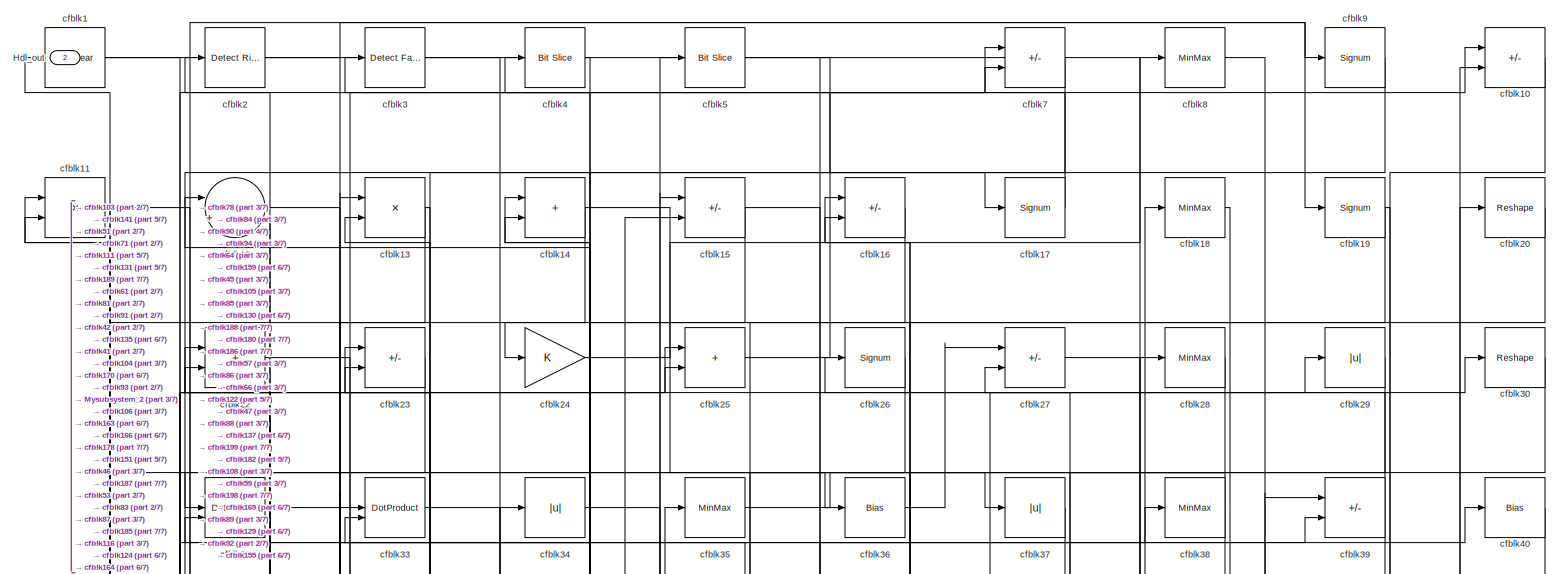
[diagram: root canvas - part 1/7, full width, top band]
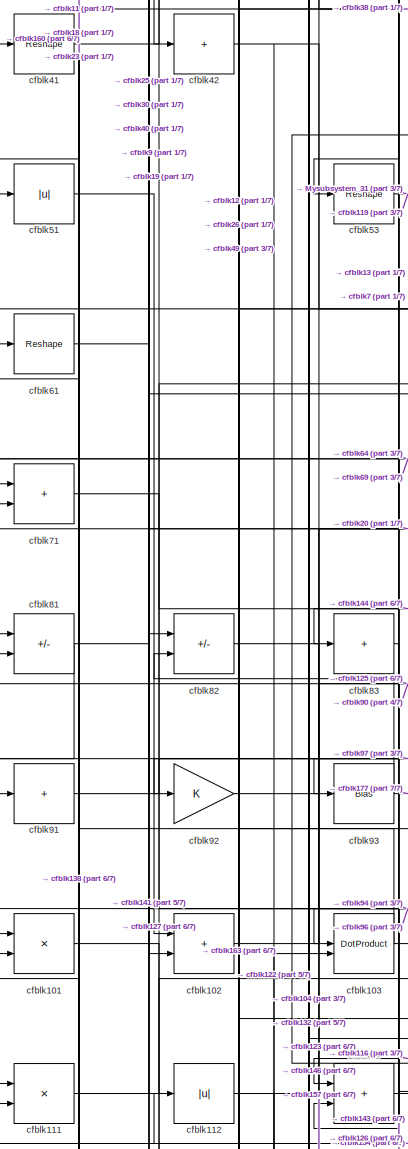
[diagram: root canvas - part 2/7, middle left region]
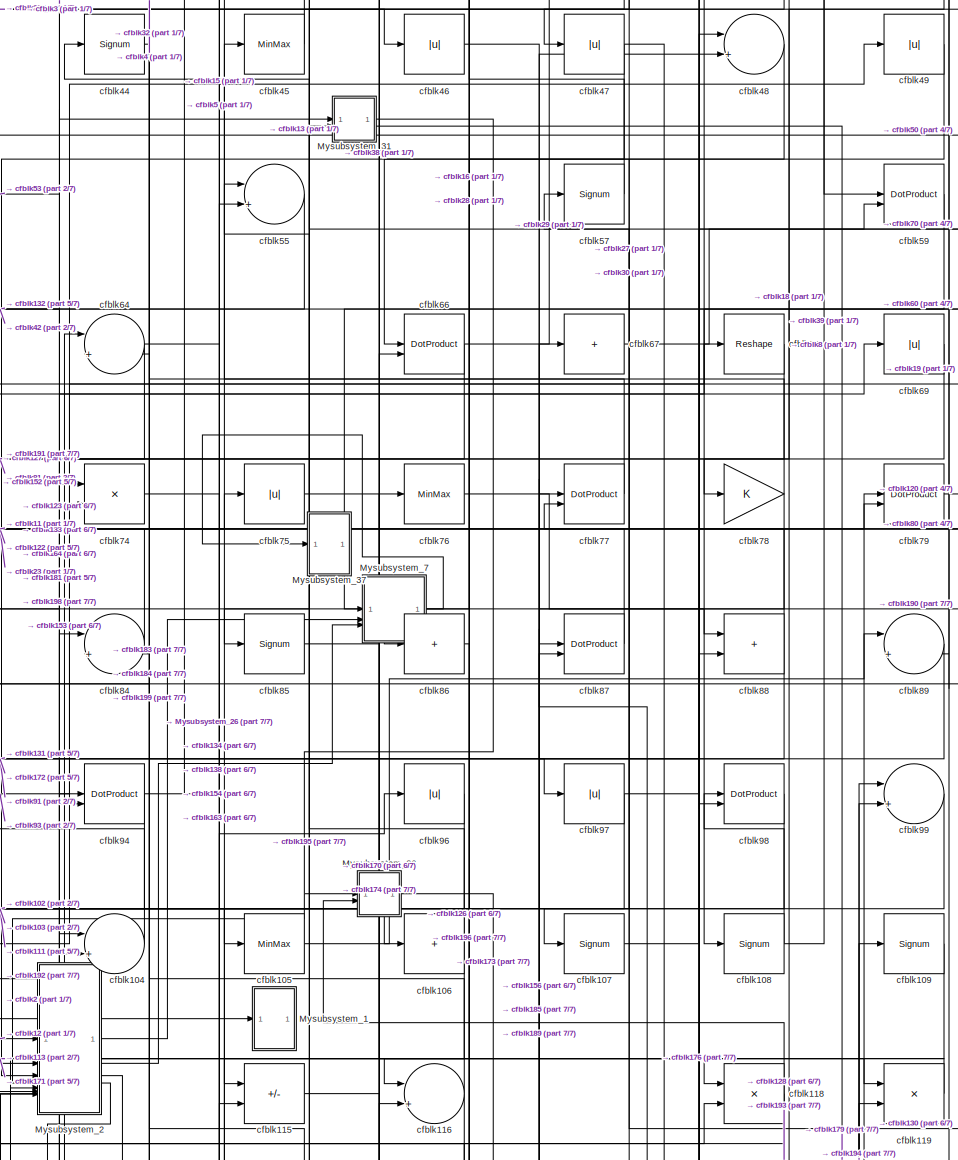
[diagram: root canvas - part 3/7, central region]
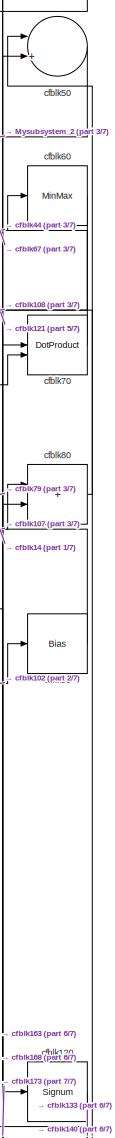
[diagram: root canvas - part 4/7, middle right region]
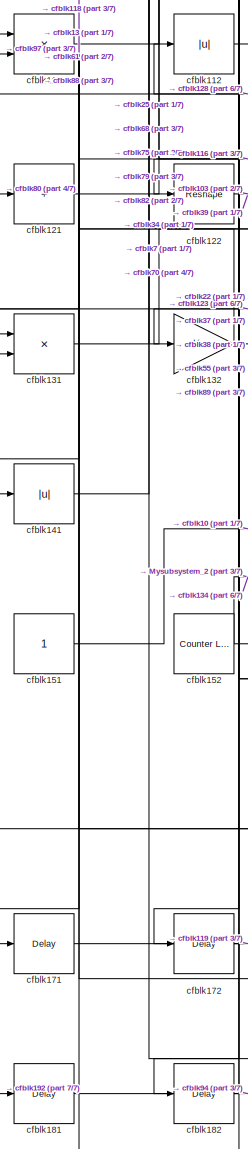
[diagram: root canvas - part 5/7, bottom left region]
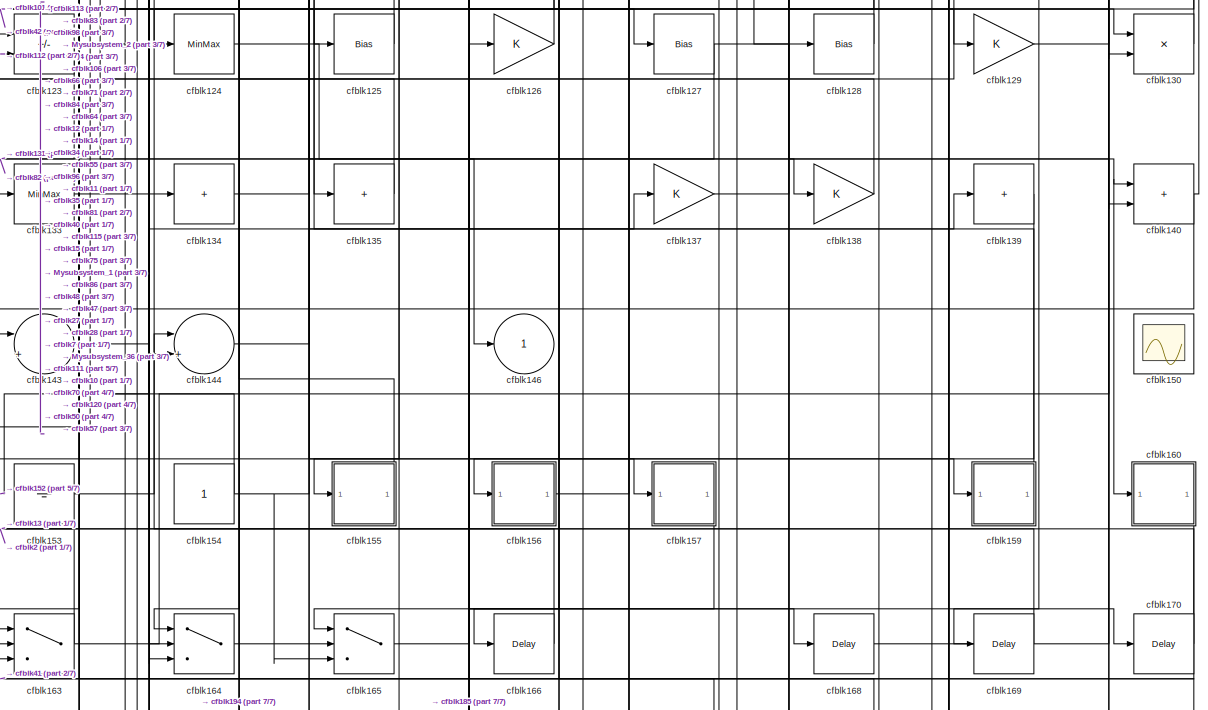
[diagram: root canvas - part 6/7, full width, bottom band]
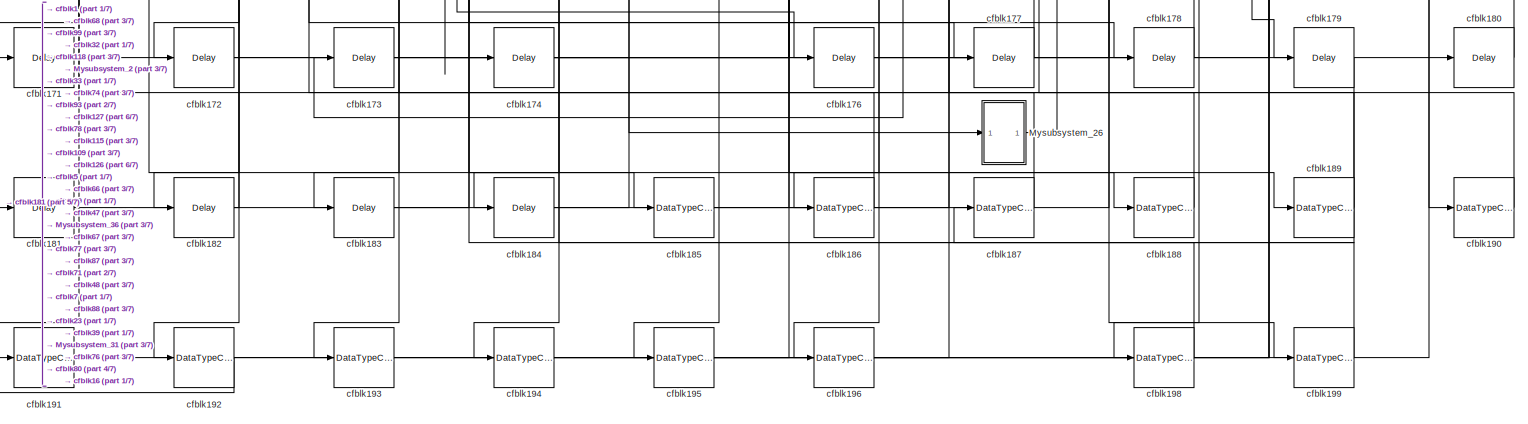
[diagram: root canvas - part 7/7, full width, bottom band]
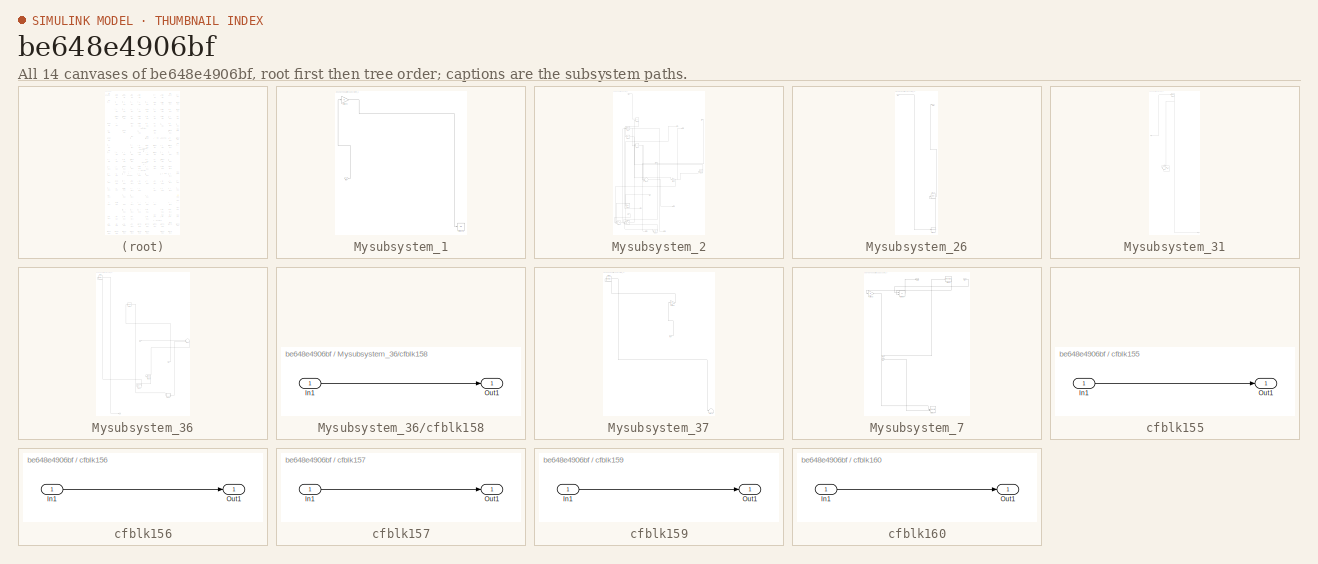
[diagram: thumbnail index - all 14 canvases of the model, root first then tree order]
MODEL slx_be648e4906bf
KIND model
CONFIG AbsTol = auto
CONFIG EnableMultiTasking = off
CONFIG FixedStep = auto
CONFIG MaxStep = auto
CONFIG MinStep = auto
CONFIG RelTol = 1e-3
CONFIG SampleTimeConstraint = Unconstrained
CONFIG SolverName = VariableStepAuto
CONFIG StartTime = 0.0
CONFIG StopTime = 10.0
BLOCK [Outport] Hdl_out
  OutDataTypeStr = uint8
  Port = 2
BLOCK [SubSystem] Mysubsystem_1
  RTWFcnName = Mysubsystem_1
  RTWFcnNameOpts = User specified
  RTWFileNameOpts = Use function name
  RTWSystemCode = Reusable function
  TreatAsAtomicUnit = on
BLOCK [Inport] Mysubsystem_1/In1
BLOCK [Display] Mysubsystem_1/cfblk148
  Decimation = 1
BLOCK [Gain] Mysubsystem_1/cfblk72
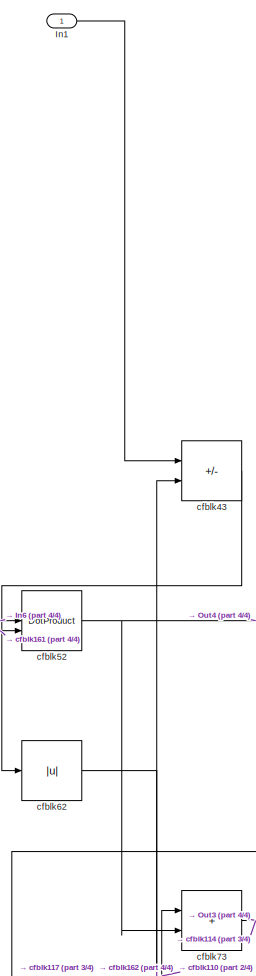
[diagram: Mysubsystem_2 - part 1/4, top left region]
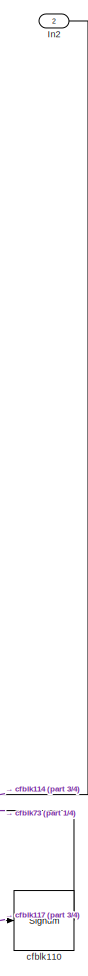
[diagram: Mysubsystem_2 - part 2/4, middle right region]
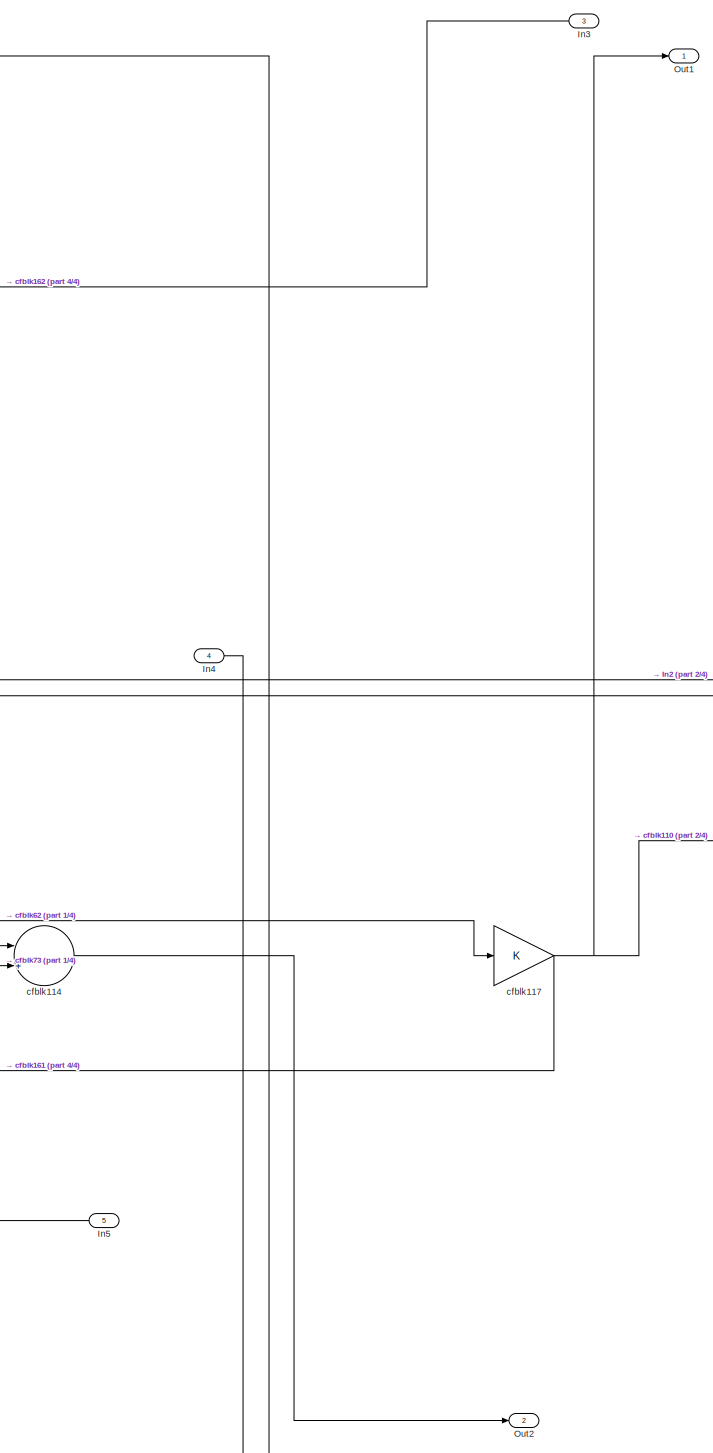
[diagram: Mysubsystem_2 - part 3/4, central region]
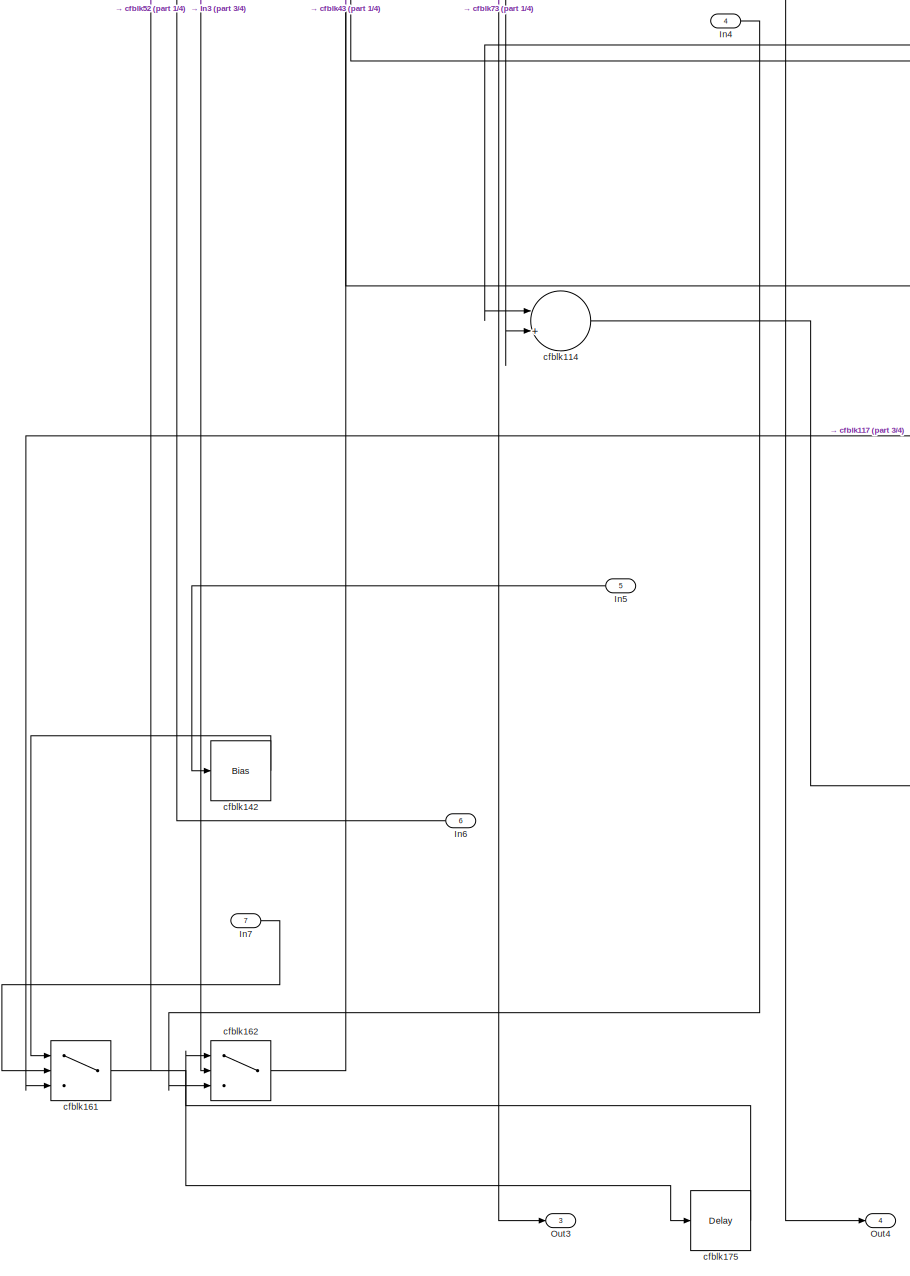
[diagram: Mysubsystem_2 - part 4/4, bottom left region]
BLOCK [SubSystem] Mysubsystem_2
  RTWFcnName = Mysubsystem_2
  RTWFcnNameOpts = User specified
  RTWFileNameOpts = Use function name
  RTWSystemCode = Reusable function
  TreatAsAtomicUnit = on
BLOCK [Inport] Mysubsystem_2/In1
BLOCK [Inport] Mysubsystem_2/In2
  Port = 2
BLOCK [Inport] Mysubsystem_2/In3
  Port = 3
BLOCK [Inport] Mysubsystem_2/In4
  Port = 4
BLOCK [Inport] Mysubsystem_2/In5
  Port = 5
BLOCK [Inport] Mysubsystem_2/In6
  Port = 6
BLOCK [Inport] Mysubsystem_2/In7
  Port = 7
BLOCK [Outport] Mysubsystem_2/Out1
BLOCK [Outport] Mysubsystem_2/Out2
  Port = 2
BLOCK [Outport] Mysubsystem_2/Out3
  Port = 3
BLOCK [Outport] Mysubsystem_2/Out4
  Port = 4
BLOCK [Signum] Mysubsystem_2/cfblk110
BLOCK [Sum] Mysubsystem_2/cfblk114
  Inputs = |++
BLOCK [Gain] Mysubsystem_2/cfblk117
BLOCK [Bias] Mysubsystem_2/cfblk142
  Bias = 0.0
  SaturateOnIntegerOverflow = off
BLOCK [Switch] Mysubsystem_2/cfblk161
  InputSameDT = off
  SaturateOnIntegerOverflow = off
BLOCK [Switch] Mysubsystem_2/cfblk162
  InputSameDT = off
  SaturateOnIntegerOverflow = off
BLOCK [Delay] Mysubsystem_2/cfblk175
  InputPortMap = u0
  SampleTime = 1
BLOCK [Sum] Mysubsystem_2/cfblk43
  IconShape = rectangular
  Inputs = +-
BLOCK [DotProduct] Mysubsystem_2/cfblk52
  OutDataTypeStr = Inherit: Inherit via internal rule
BLOCK [Abs] Mysubsystem_2/cfblk62
  SaturateOnIntegerOverflow = off
BLOCK [Sum] Mysubsystem_2/cfblk73
  IconShape = rectangular
BLOCK [SubSystem] Mysubsystem_26
  RTWFcnName = Mysubsystem_26
  RTWFcnNameOpts = User specified
  RTWFileNameOpts = Use function name
  RTWSystemCode = Reusable function
  TreatAsAtomicUnit = on
BLOCK [Inport] Mysubsystem_26/In1
BLOCK [Outport] Mysubsystem_26/Out1
BLOCK [Delay] Mysubsystem_26/cfblk167
  InputPortMap = u0
  SampleTime = 1
BLOCK [DataTypeConversion] Mysubsystem_26/cfblk197
  OutDataTypeStr = uint8
  RndMeth = Floor
  SaturateOnIntegerOverflow = off
BLOCK [SubSystem] Mysubsystem_31
  RTWFcnName = Mysubsystem_31
  RTWFcnNameOpts = User specified
  RTWFileNameOpts = Use function name
  RTWSystemCode = Reusable function
  TreatAsAtomicUnit = on
BLOCK [Inport] Mysubsystem_31/In2
  Port = 2
BLOCK [Outport] Mysubsystem_31/Out1
BLOCK [Reference] Mysubsystem_31/cfblk6  REF=hdlsllib/Logic and Bit
Operations/Compare
To Constant
  SourceBlock = hdlsllib/Logic and Bit\nOperations/Compare\nTo Constant
  SourceType = Compare To Constant
BLOCK [Sum] Mysubsystem_31/cfblk95
  Inputs = |++
BLOCK [Inport] Mysubsystem_31/u
BLOCK [Outport] Mysubsystem_31/y
  Port = 2
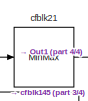
[diagram: Mysubsystem_36 - part 1/4, top left region]
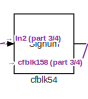
[diagram: Mysubsystem_36 - part 2/4, top center region]
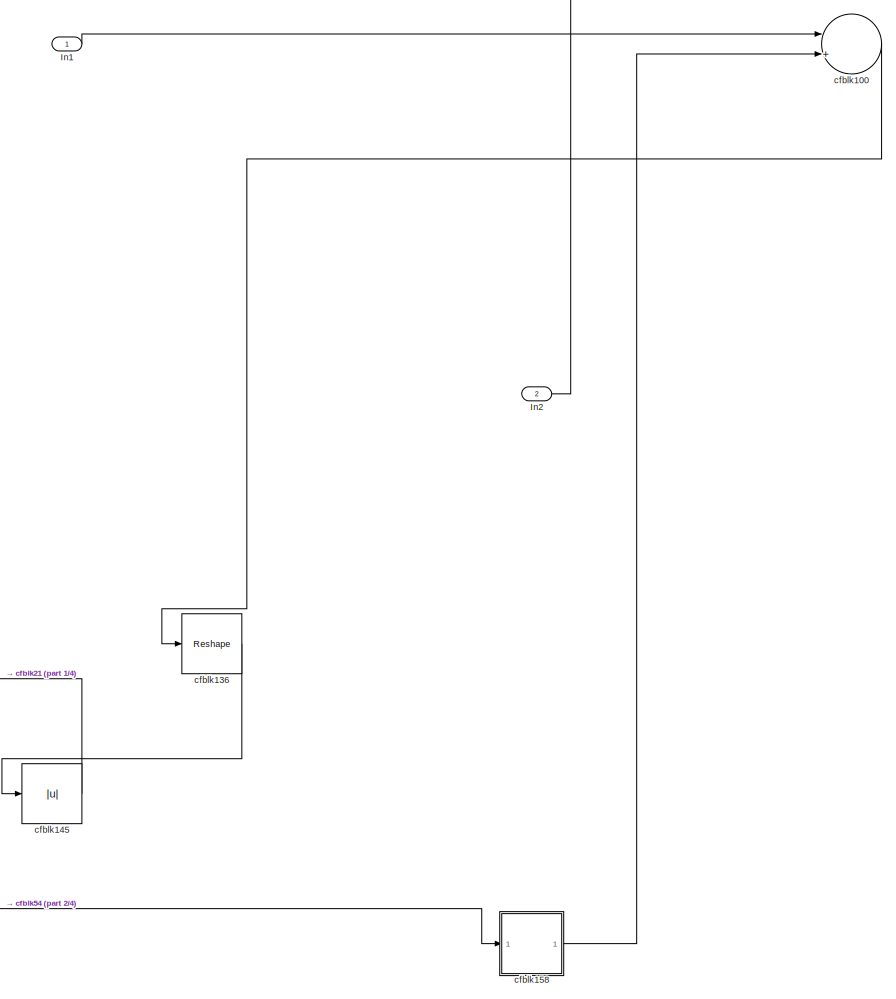
[diagram: Mysubsystem_36 - part 3/4, bottom right region]
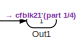
[diagram: Mysubsystem_36 - part 4/4, bottom left region]
BLOCK [SubSystem] Mysubsystem_36
  RTWFcnName = Mysubsystem_36
  RTWFcnNameOpts = User specified
  RTWFileNameOpts = Use function name
  RTWSystemCode = Reusable function
  TreatAsAtomicUnit = on
BLOCK [Inport] Mysubsystem_36/In1
BLOCK [Inport] Mysubsystem_36/In2
  Port = 2
BLOCK [Outport] Mysubsystem_36/Out1
BLOCK [Sum] Mysubsystem_36/cfblk100
  Inputs = |++
BLOCK [Reshape] Mysubsystem_36/cfblk136
BLOCK [Abs] Mysubsystem_36/cfblk145
  SaturateOnIntegerOverflow = off
BLOCK [SubSystem] Mysubsystem_36/cfblk158
  LibrarySourceBlock = hdlsllib/Ports &\nSubsystems/Subsystem
BLOCK [Inport] Mysubsystem_36/cfblk158/In1
BLOCK [Outport] Mysubsystem_36/cfblk158/Out1
BLOCK [MinMax] Mysubsystem_36/cfblk21
BLOCK [Signum] Mysubsystem_36/cfblk54
BLOCK [SubSystem] Mysubsystem_37
  RTWFcnName = Mysubsystem_37
  RTWFcnNameOpts = User specified
  RTWFileNameOpts = Use function name
  RTWSystemCode = Reusable function
  TreatAsAtomicUnit = on
BLOCK [Inport] Mysubsystem_37/In1
BLOCK [Terminator] Mysubsystem_37/cfblk149
BLOCK [MinMax] Mysubsystem_37/cfblk31
BLOCK [Gain] Mysubsystem_37/cfblk56
BLOCK [SubSystem] Mysubsystem_7
  RTWFcnName = Mysubsystem_7
  RTWFcnNameOpts = User specified
  RTWFileNameOpts = Use function name
  RTWSystemCode = Reusable function
  TreatAsAtomicUnit = on
BLOCK [Inport] Mysubsystem_7/In1
BLOCK [Inport] Mysubsystem_7/In2
  Port = 2
BLOCK [Inport] Mysubsystem_7/In3
  Port = 3
BLOCK [Outport] Mysubsystem_7/Out1
BLOCK [Record] Mysubsystem_7/cfblk147
  CompatibilityTag = XY
  FileSettingsInternal = {"entries":[{"content":{"excelSettings":{"content":{},"type":"Streamout.ExcelSettings"}},"type":"Streamout.FileSettingStorage","uuid":""}],"packageUris":["http:\/\/schema.mathworks.com\/mf0\/streamout_blocks\/R2020a"],"version":"1.0"}
  Layout = [1 1]
  SignalsInternal = {"entries":[{"content":{},"type":"RecordBlkView.InputSignals","uuid":""}],"packageUris":["http:\/\/schema.mathworks.com\/mf0\/streamout_blocks\/R2020a"],"version":"1.0"}
  VisualizationBindings = {"xyplotplugin":{"info":[{"series":[],"subplotID":1}]}}
  st = -1
BLOCK [Reshape] Mysubsystem_7/cfblk58
BLOCK [Gain] Mysubsystem_7/cfblk63
BLOCK [Sum] Mysubsystem_7/cfblk65
  IconShape = rectangular
  Inputs = +-
BLOCK [Reference] cfblk1  REF=simulink/Logic and Bit
Operations/Bit Clear
  LibrarySourceBlock = hdlsllib/Logic and Bit\nOperations/Bit Clear
  SourceBlock = simulink/Logic and Bit\nOperations/Bit Clear
  SourceType = Bit Clear
BLOCK [Sum] cfblk10
  IconShape = rectangular
  Inputs = +-
  OutDataTypeStr = uint8
BLOCK [Product] cfblk101
  Inputs = */
  OutDataTypeStr = uint8
  RndMeth = Zero
  SaturateOnIntegerOverflow = on
BLOCK [Sum] cfblk102
  IconShape = rectangular
  OutDataTypeStr = uint8
BLOCK [DotProduct] cfblk103
  OutDataTypeStr = uint8
BLOCK [Sum] cfblk104
  Inputs = |++
  OutDataTypeStr = uint8
BLOCK [MinMax] cfblk105
  OutDataTypeStr = uint8
BLOCK [Sum] cfblk106
  IconShape = rectangular
  Inputs = +
  OutDataTypeStr = uint8
BLOCK [Signum] cfblk107
BLOCK [Signum] cfblk108
BLOCK [Signum] cfblk109
BLOCK [Product] cfblk11
  Inputs = */
  OutDataTypeStr = uint8
  RndMeth = Zero
  SaturateOnIntegerOverflow = on
BLOCK [Product] cfblk111
  Inputs = */
  OutDataTypeStr = uint8
  RndMeth = Zero
  SaturateOnIntegerOverflow = on
BLOCK [Abs] cfblk112
  OutDataTypeStr = uint8
  SaturateOnIntegerOverflow = off
BLOCK [Sum] cfblk113
  IconShape = rectangular
  OutDataTypeStr = uint8
BLOCK [Sum] cfblk115
  IconShape = rectangular
  Inputs = +-
  OutDataTypeStr = uint8
BLOCK [Sum] cfblk116
  Inputs = |++
  OutDataTypeStr = uint8
BLOCK [Product] cfblk118
  Inputs = */
  OutDataTypeStr = uint8
  RndMeth = Zero
  SaturateOnIntegerOverflow = on
BLOCK [Product] cfblk119
  Inputs = */
  OutDataTypeStr = uint8
  RndMeth = Zero
  SaturateOnIntegerOverflow = on
BLOCK [Sum] cfblk12
  Inputs = |++
  OutDataTypeStr = uint8
BLOCK [Signum] cfblk120
BLOCK [Sum] cfblk121
  IconShape = rectangular
  Inputs = +
  OutDataTypeStr = uint8
BLOCK [Reshape] cfblk122
BLOCK [Sum] cfblk123
  IconShape = rectangular
  Inputs = +-
  OutDataTypeStr = uint8
BLOCK [MinMax] cfblk124
  OutDataTypeStr = uint8
BLOCK [Bias] cfblk125
  Bias = 0.0
  SaturateOnIntegerOverflow = off
BLOCK [Gain] cfblk126
  OutDataTypeStr = uint8
BLOCK [Bias] cfblk127
  Bias = 0.0
  SaturateOnIntegerOverflow = off
BLOCK [Bias] cfblk128
  Bias = 0.0
  SaturateOnIntegerOverflow = off
BLOCK [Gain] cfblk129
  OutDataTypeStr = uint8
BLOCK [Product] cfblk13
  Inputs = */
  OutDataTypeStr = uint8
  RndMeth = Zero
  SaturateOnIntegerOverflow = on
BLOCK [Product] cfblk130
  Inputs = */
  OutDataTypeStr = uint8
  RndMeth = Zero
  SaturateOnIntegerOverflow = on
BLOCK [Product] cfblk131
  Inputs = */
  OutDataTypeStr = uint8
  RndMeth = Zero
  SaturateOnIntegerOverflow = on
BLOCK [Gain] cfblk132
  OutDataTypeStr = uint8
BLOCK [MinMax] cfblk133
  OutDataTypeStr = uint8
BLOCK [Sum] cfblk134
  IconShape = rectangular
  Inputs = +
  OutDataTypeStr = uint8
BLOCK [Sum] cfblk135
  IconShape = rectangular
  Inputs = +
  OutDataTypeStr = uint8
BLOCK [Gain] cfblk137
  OutDataTypeStr = uint8
BLOCK [Gain] cfblk138
  OutDataTypeStr = uint8
BLOCK [Sum] cfblk139
  IconShape = rectangular
  Inputs = +
  OutDataTypeStr = uint8
BLOCK [Sum] cfblk14
  IconShape = rectangular
  OutDataTypeStr = uint8
BLOCK [Sum] cfblk140
  IconShape = rectangular
  OutDataTypeStr = uint8
BLOCK [Abs] cfblk141
  OutDataTypeStr = uint8
  SaturateOnIntegerOverflow = off
BLOCK [Sum] cfblk143
  Inputs = |++
  OutDataTypeStr = uint8
BLOCK [Sum] cfblk144
  Inputs = |++
  OutDataTypeStr = uint8
BLOCK [Outport] cfblk146
  OutDataTypeStr = uint8
  VectorParamsAs1DForOutWhenUnconnected = off
BLOCK [Sum] cfblk15
  IconShape = rectangular
  Inputs = +-
  OutDataTypeStr = uint8
BLOCK [Scope] cfblk150
  Floating = on
  NumInputPorts = 1
  ScopeSpecificationString = Simulink.scopes.TimeScopeBlockCfg('CurrentConfiguration', extmgr.ConfigurationSet(extmgr.Configuration('Core','General UI',true,'FigureColor',[0.156862745098039 0.156862745098039 0.156862745098039]),extmgr.Configuration('Core','Source UI',true),extmgr.Configuration('Sources','WiredSimulink',true,'DataLoggingVariableName','ScopeData1','DataLoggingSaveFormat','StructureWithTime','DataLoggingLimitDat...<+2713ch>
BLOCK [Constant] cfblk151
  OutDataTypeStr = uint8
  SampleTime = -1
BLOCK [Reference] cfblk152  REF=hdlsllib/Sources/Counter
Limited
  SourceBlock = hdlsllib/Sources/Counter\nLimited
  SourceType = Counter Limited
BLOCK [Ground] cfblk153
BLOCK [Constant] cfblk154
  OutDataTypeStr = uint8
  SampleTime = -1
BLOCK [SubSystem] cfblk155
  LibrarySourceBlock = hdlsllib/Ports &\nSubsystems/Subsystem
BLOCK [Inport] cfblk155/In1
BLOCK [Outport] cfblk155/Out1
BLOCK [SubSystem] cfblk156
  LibrarySourceBlock = hdlsllib/Ports &\nSubsystems/Subsystem
BLOCK [Inport] cfblk156/In1
BLOCK [Outport] cfblk156/Out1
BLOCK [SubSystem] cfblk157
  LibrarySourceBlock = hdlsllib/Ports &\nSubsystems/Subsystem
BLOCK [Inport] cfblk157/In1
BLOCK [Outport] cfblk157/Out1
BLOCK [SubSystem] cfblk159
  LibrarySourceBlock = hdlsllib/Ports &\nSubsystems/Subsystem
BLOCK [Inport] cfblk159/In1
BLOCK [Outport] cfblk159/Out1
BLOCK [Sum] cfblk16
  IconShape = rectangular
  Inputs = +-
  OutDataTypeStr = uint8
BLOCK [SubSystem] cfblk160
  LibrarySourceBlock = hdlsllib/Ports &\nSubsystems/Subsystem
BLOCK [Inport] cfblk160/In1
BLOCK [Outport] cfblk160/Out1
BLOCK [Switch] cfblk163
  InputSameDT = off
  OutDataTypeStr = uint8
  SaturateOnIntegerOverflow = off
BLOCK [Switch] cfblk164
  InputSameDT = off
  OutDataTypeStr = uint8
  SaturateOnIntegerOverflow = off
BLOCK [Switch] cfblk165
  InputSameDT = off
  OutDataTypeStr = uint8
  SaturateOnIntegerOverflow = off
BLOCK [Delay] cfblk166
  InputPortMap = u0
  SampleTime = 1
BLOCK [Delay] cfblk168
  InputPortMap = u0
  SampleTime = 1
BLOCK [Delay] cfblk169
  InputPortMap = u0
  SampleTime = 1
BLOCK [Signum] cfblk17
BLOCK [Delay] cfblk170
  InputPortMap = u0
  SampleTime = 1
BLOCK [Delay] cfblk171
  InputPortMap = u0
  SampleTime = 1
BLOCK [Delay] cfblk172
  InputPortMap = u0
  SampleTime = 1
BLOCK [Delay] cfblk173
  InputPortMap = u0
  SampleTime = 1
BLOCK [Delay] cfblk174
  InputPortMap = u0
  SampleTime = 1
BLOCK [Delay] cfblk176
  InputPortMap = u0
  SampleTime = 1
BLOCK [Delay] cfblk177
  InputPortMap = u0
  SampleTime = 1
BLOCK [Delay] cfblk178
  InputPortMap = u0
  SampleTime = 1
BLOCK [Delay] cfblk179
  InputPortMap = u0
  SampleTime = 1
BLOCK [MinMax] cfblk18
  OutDataTypeStr = uint8
BLOCK [Delay] cfblk180
  InputPortMap = u0
  SampleTime = 1
BLOCK [Delay] cfblk181
  InputPortMap = u0
  SampleTime = 1
BLOCK [Delay] cfblk182
  InputPortMap = u0
  SampleTime = 1
BLOCK [Delay] cfblk183
  InputPortMap = u0
  SampleTime = 1
BLOCK [Delay] cfblk184
  InputPortMap = u0
  SampleTime = 1
BLOCK [DataTypeConversion] cfblk185
  OutDataTypeStr = uint8
  RndMeth = Floor
  SaturateOnIntegerOverflow = off
BLOCK [DataTypeConversion] cfblk186
  OutDataTypeStr = uint8
  RndMeth = Floor
  SaturateOnIntegerOverflow = off
BLOCK [DataTypeConversion] cfblk187
  OutDataTypeStr = uint8
  RndMeth = Floor
  SaturateOnIntegerOverflow = off
BLOCK [DataTypeConversion] cfblk188
  OutDataTypeStr = uint8
  RndMeth = Floor
  SaturateOnIntegerOverflow = off
BLOCK [DataTypeConversion] cfblk189
  OutDataTypeStr = uint8
  RndMeth = Floor
  SaturateOnIntegerOverflow = off
BLOCK [Signum] cfblk19
BLOCK [DataTypeConversion] cfblk190
  OutDataTypeStr = uint8
  RndMeth = Floor
  SaturateOnIntegerOverflow = off
BLOCK [DataTypeConversion] cfblk191
  OutDataTypeStr = uint8
  RndMeth = Floor
  SaturateOnIntegerOverflow = off
BLOCK [DataTypeConversion] cfblk192
  OutDataTypeStr = uint8
  RndMeth = Floor
  SaturateOnIntegerOverflow = off
BLOCK [DataTypeConversion] cfblk193
  OutDataTypeStr = uint8
  RndMeth = Floor
  SaturateOnIntegerOverflow = off
BLOCK [DataTypeConversion] cfblk194
  OutDataTypeStr = uint8
  RndMeth = Floor
  SaturateOnIntegerOverflow = off
BLOCK [DataTypeConversion] cfblk195
  OutDataTypeStr = uint8
  RndMeth = Floor
  SaturateOnIntegerOverflow = off
BLOCK [DataTypeConversion] cfblk196
  OutDataTypeStr = uint8
  RndMeth = Floor
  SaturateOnIntegerOverflow = off
BLOCK [DataTypeConversion] cfblk198
  OutDataTypeStr = uint8
  RndMeth = Floor
  SaturateOnIntegerOverflow = off
BLOCK [DataTypeConversion] cfblk199
  OutDataTypeStr = uint8
  RndMeth = Floor
  SaturateOnIntegerOverflow = off
BLOCK [Reference] cfblk2  REF=hdlsllib/Logic and Bit
Operations/Detect Rise
Positive
  SourceBlock = hdlsllib/Logic and Bit\nOperations/Detect Rise\nPositive
  SourceType = Detect Rise Positive
BLOCK [Reshape] cfblk20
BLOCK [Sum] cfblk22
  IconShape = rectangular
  OutDataTypeStr = uint8
BLOCK [Sum] cfblk23
  IconShape = rectangular
  Inputs = +-
  OutDataTypeStr = uint8
BLOCK [Gain] cfblk24
  OutDataTypeStr = uint8
BLOCK [Sum] cfblk25
  IconShape = rectangular
  OutDataTypeStr = uint8
BLOCK [Signum] cfblk26
BLOCK [Sum] cfblk27
  IconShape = rectangular
  Inputs = +-
  OutDataTypeStr = uint8
BLOCK [MinMax] cfblk28
  OutDataTypeStr = uint8
BLOCK [Abs] cfblk29
  OutDataTypeStr = uint8
  SaturateOnIntegerOverflow = off
BLOCK [Reference] cfblk3  REF=hdlsllib/Logic and Bit
Operations/Detect Fall
Nonpositive
  SourceBlock = hdlsllib/Logic and Bit\nOperations/Detect Fall\nNonpositive
  SourceType = Detect Fall Nonpositive
BLOCK [Reshape] cfblk30
BLOCK [DotProduct] cfblk32
  OutDataTypeStr = uint8
BLOCK [DotProduct] cfblk33
  OutDataTypeStr = uint8
BLOCK [Abs] cfblk34
  OutDataTypeStr = uint8
  SaturateOnIntegerOverflow = off
BLOCK [MinMax] cfblk35
  OutDataTypeStr = uint8
BLOCK [Bias] cfblk36
  Bias = 0.0
  SaturateOnIntegerOverflow = off
BLOCK [Abs] cfblk37
  OutDataTypeStr = uint8
  SaturateOnIntegerOverflow = off
BLOCK [MinMax] cfblk38
  OutDataTypeStr = uint8
BLOCK [Sum] cfblk39
  IconShape = rectangular
  Inputs = +-
  OutDataTypeStr = uint8
BLOCK [Reference] cfblk4  REF=hdlsllib/Logic and Bit
Operations/Bit Slice
  SourceBlock = hdlsllib/Logic and Bit\nOperations/Bit Slice
  SourceType = Bit Slice
BLOCK [Bias] cfblk40
  Bias = 0.0
  SaturateOnIntegerOverflow = off
BLOCK [Reshape] cfblk41
BLOCK [Sum] cfblk42
  IconShape = rectangular
  Inputs = +
  OutDataTypeStr = uint8
BLOCK [Signum] cfblk44
BLOCK [MinMax] cfblk45
  OutDataTypeStr = uint8
BLOCK [Abs] cfblk46
  OutDataTypeStr = uint8
  SaturateOnIntegerOverflow = off
BLOCK [Abs] cfblk47
  OutDataTypeStr = uint8
  SaturateOnIntegerOverflow = off
BLOCK [Sum] cfblk48
  Inputs = |++
  OutDataTypeStr = uint8
BLOCK [Abs] cfblk49
  OutDataTypeStr = uint8
  SaturateOnIntegerOverflow = off
BLOCK [Reference] cfblk5  REF=hdlsllib/Logic and Bit
Operations/Bit Slice
  SourceBlock = hdlsllib/Logic and Bit\nOperations/Bit Slice
  SourceType = Bit Slice
BLOCK [Sum] cfblk50
  Inputs = |++
  OutDataTypeStr = uint8
BLOCK [Abs] cfblk51
  OutDataTypeStr = uint8
  SaturateOnIntegerOverflow = off
BLOCK [Reshape] cfblk53
BLOCK [Sum] cfblk55
  Inputs = |++
  OutDataTypeStr = uint8
BLOCK [Signum] cfblk57
BLOCK [DotProduct] cfblk59
  OutDataTypeStr = uint8
BLOCK [MinMax] cfblk60
  OutDataTypeStr = uint8
BLOCK [Reshape] cfblk61
BLOCK [Sum] cfblk64
  Inputs = |++
  OutDataTypeStr = uint8
BLOCK [DotProduct] cfblk66
  OutDataTypeStr = uint8
BLOCK [Sum] cfblk67
  IconShape = rectangular
  Inputs = +
  OutDataTypeStr = uint8
BLOCK [Reshape] cfblk68
BLOCK [Abs] cfblk69
  OutDataTypeStr = uint8
  SaturateOnIntegerOverflow = off
BLOCK [Sum] cfblk7
  IconShape = rectangular
  Inputs = +-
  OutDataTypeStr = uint8
BLOCK [DotProduct] cfblk70
  OutDataTypeStr = uint8
BLOCK [Sum] cfblk71
  IconShape = rectangular
  OutDataTypeStr = uint8
BLOCK [Product] cfblk74
  Inputs = */
  OutDataTypeStr = uint8
  RndMeth = Zero
  SaturateOnIntegerOverflow = on
BLOCK [Abs] cfblk75
  OutDataTypeStr = uint8
  SaturateOnIntegerOverflow = off
BLOCK [MinMax] cfblk76
  OutDataTypeStr = uint8
BLOCK [DotProduct] cfblk77
  OutDataTypeStr = uint8
BLOCK [Gain] cfblk78
  OutDataTypeStr = uint8
BLOCK [DotProduct] cfblk79
  OutDataTypeStr = uint8
BLOCK [MinMax] cfblk8
  OutDataTypeStr = uint8
BLOCK [Sum] cfblk80
  IconShape = rectangular
  OutDataTypeStr = uint8
BLOCK [Sum] cfblk81
  IconShape = rectangular
  Inputs = +-
  OutDataTypeStr = uint8
BLOCK [Sum] cfblk82
  IconShape = rectangular
  Inputs = +-
  OutDataTypeStr = uint8
BLOCK [Sum] cfblk83
  IconShape = rectangular
  Inputs = +
  OutDataTypeStr = uint8
BLOCK [Sum] cfblk84
  Inputs = |++
  OutDataTypeStr = uint8
BLOCK [Signum] cfblk85
BLOCK [Sum] cfblk86
  IconShape = rectangular
  Inputs = +
  OutDataTypeStr = uint8
BLOCK [DotProduct] cfblk87
  OutDataTypeStr = uint8
BLOCK [Sum] cfblk88
  IconShape = rectangular
  OutDataTypeStr = uint8
BLOCK [Sum] cfblk89
  Inputs = |++
  OutDataTypeStr = uint8
BLOCK [Signum] cfblk9
BLOCK [Bias] cfblk90
  Bias = 0.0
  SaturateOnIntegerOverflow = off
BLOCK [Sum] cfblk91
  IconShape = rectangular
  Inputs = +
  OutDataTypeStr = uint8
BLOCK [Gain] cfblk92
  OutDataTypeStr = uint8
BLOCK [Bias] cfblk93
  Bias = 0.0
  SaturateOnIntegerOverflow = off
BLOCK [DotProduct] cfblk94
  OutDataTypeStr = uint8
BLOCK [Abs] cfblk96
  OutDataTypeStr = uint8
  SaturateOnIntegerOverflow = off
BLOCK [Abs] cfblk97
  OutDataTypeStr = uint8
  SaturateOnIntegerOverflow = off
BLOCK [DotProduct] cfblk98
  OutDataTypeStr = uint8
BLOCK [Sum] cfblk99
  Inputs = |++
  OutDataTypeStr = uint8
LINE Mysubsystem_1/In1:1 -> Mysubsystem_1/cfblk72:1
LINE Mysubsystem_1/cfblk72:1 -> Mysubsystem_1/cfblk148:1
LINE Mysubsystem_2/In1:1 -> Mysubsystem_2/cfblk43:1
LINE Mysubsystem_2/In2:1 -> Mysubsystem_2/cfblk114:1
LINE Mysubsystem_2/In3:1 -> Mysubsystem_2/cfblk162:2
LINE Mysubsystem_2/In4:1 -> Mysubsystem_2/cfblk162:3
LINE Mysubsystem_2/In5:1 -> Mysubsystem_2/cfblk142:1
LINE Mysubsystem_2/In6:1 -> Mysubsystem_2/cfblk52:1
LINE Mysubsystem_2/In7:1 -> Mysubsystem_2/cfblk161:2
LINE Mysubsystem_2/cfblk110:1 -> Mysubsystem_2/cfblk73:1
LINE Mysubsystem_2/cfblk114:1 -> Mysubsystem_2/Out2:1
NET Mysubsystem_2/cfblk117:1 -> Mysubsystem_2/Out1:1, Mysubsystem_2/cfblk110:1, Mysubsystem_2/cfblk161:3
LINE Mysubsystem_2/cfblk142:1 -> Mysubsystem_2/cfblk161:1
NET Mysubsystem_2/cfblk161:1 -> Mysubsystem_2/cfblk175:1, Mysubsystem_2/cfblk52:2
LINE Mysubsystem_2/cfblk162:1 -> Mysubsystem_2/cfblk43:2
LINE Mysubsystem_2/cfblk175:1 -> Mysubsystem_2/cfblk162:1
LINE Mysubsystem_2/cfblk43:1 -> Mysubsystem_2/cfblk62:1
NET Mysubsystem_2/cfblk52:1 -> Mysubsystem_2/Out4:1, Mysubsystem_2/cfblk73:2
LINE Mysubsystem_2/cfblk62:1 -> Mysubsystem_2/cfblk117:1
NET Mysubsystem_2/cfblk73:1 -> Mysubsystem_2/Out3:1, Mysubsystem_2/cfblk114:2
LINE Mysubsystem_26/In1:1 -> Mysubsystem_26/cfblk197:1
LINE Mysubsystem_26/cfblk167:1 -> Mysubsystem_26/Out1:1
LINE Mysubsystem_26/cfblk197:1 -> Mysubsystem_26/cfblk167:1
LINE Mysubsystem_26:1 -> cfblk87:1
LINE Mysubsystem_2:1 -> Mysubsystem_7:2
LINE Mysubsystem_2:2 -> Mysubsystem_7:3
LINE Mysubsystem_2:3 -> cfblk174:1
LINE Mysubsystem_2:4 -> cfblk176:1
LINE Mysubsystem_31/In2:1 -> Mysubsystem_31/cfblk95:2
NET Mysubsystem_31/cfblk6:1 -> Mysubsystem_31/cfblk95:1, Mysubsystem_31/y:1
LINE Mysubsystem_31/cfblk95:1 -> Mysubsystem_31/Out1:1
LINE Mysubsystem_31/u:1 -> Mysubsystem_31/cfblk6:1
NET Mysubsystem_31:1 -> Mysubsystem_2:4, Mysubsystem_36:1
LINE Mysubsystem_31:2 -> cfblk179:1
LINE Mysubsystem_36/In1:1 -> Mysubsystem_36/cfblk100:1
LINE Mysubsystem_36/In2:1 -> Mysubsystem_36/cfblk54:1
LINE Mysubsystem_36/cfblk100:1 -> Mysubsystem_36/cfblk136:1
LINE Mysubsystem_36/cfblk136:1 -> Mysubsystem_36/cfblk145:1
LINE Mysubsystem_36/cfblk145:1 -> Mysubsystem_36/cfblk21:1
LINE Mysubsystem_36/cfblk158/In1:1 -> Mysubsystem_36/cfblk158/Out1:1
LINE Mysubsystem_36/cfblk158:1 -> Mysubsystem_36/cfblk100:2
LINE Mysubsystem_36/cfblk21:1 -> Mysubsystem_36/Out1:1
LINE Mysubsystem_36/cfblk54:1 -> Mysubsystem_36/cfblk158:1
LINE Mysubsystem_36:1 -> cfblk173:1
LINE Mysubsystem_37/In1:1 -> Mysubsystem_37/cfblk56:1
LINE Mysubsystem_37/cfblk31:1 -> Mysubsystem_37/cfblk149:1
LINE Mysubsystem_37/cfblk56:1 -> Mysubsystem_37/cfblk31:1
LINE Mysubsystem_7/In1:1 -> Mysubsystem_7/cfblk65:1
LINE Mysubsystem_7/In2:1 -> Mysubsystem_7/cfblk58:1
LINE Mysubsystem_7/In3:1 -> Mysubsystem_7/cfblk147:2
LINE Mysubsystem_7/cfblk58:1 -> Mysubsystem_7/cfblk65:2
LINE Mysubsystem_7/cfblk63:1 -> Mysubsystem_7/cfblk147:1
NET Mysubsystem_7/cfblk65:1 -> Mysubsystem_7/Out1:1, Mysubsystem_7/cfblk63:1
LINE Mysubsystem_7:1 -> Mysubsystem_37:1
LINE cfblk101:1 -> cfblk127:1
LINE cfblk102:1 -> cfblk90:1
NET cfblk103:1 -> cfblk11:2, cfblk18:1
LINE cfblk104:1 -> cfblk22:1
LINE cfblk105:1 -> cfblk89:1
NET cfblk106:1 -> cfblk164:3, cfblk55:1
LINE cfblk107:1 -> cfblk80:1
NET cfblk108:1 -> cfblk39:1, cfblk98:1
LINE cfblk109:1 -> cfblk195:1
LINE cfblk10:1 -> cfblk169:1
NET cfblk111:1 -> cfblk34:1, cfblk7:2
NET cfblk112:1 -> cfblk123:2, cfblk157:1
LINE cfblk113:1 -> cfblk69:1
LINE cfblk115:1 -> cfblk130:1
NET cfblk116:1 -> cfblk113:1, cfblk171:1, cfblk32:2
LINE cfblk118:1 -> cfblk193:1
LINE cfblk119:1 -> cfblk116:1
NET cfblk11:1 -> cfblk135:1, cfblk51:1
LINE cfblk120:1 -> cfblk133:1
LINE cfblk121:1 -> cfblk70:2
NET cfblk122:1 -> cfblk103:2, cfblk39:2, cfblk79:2
NET cfblk123:1 -> cfblk104:2, cfblk131:2
NET cfblk124:1 -> cfblk140:1, cfblk160:1
LINE cfblk125:1 -> cfblk81:1
NET cfblk126:1 -> Mysubsystem_1:1, cfblk112:1
NET cfblk127:1 -> Mysubsystem_2:5, cfblk140:2, cfblk194:1
NET cfblk128:1 -> Mysubsystem_36:2, cfblk111:1
LINE cfblk129:1 -> cfblk10:2
LINE cfblk12:1 -> Mysubsystem_2:1
LINE cfblk130:1 -> cfblk57:1
NET cfblk131:1 -> cfblk25:2, cfblk68:1, cfblk75:1, cfblk79:1
NET cfblk132:1 -> cfblk118:2, cfblk61:1
LINE cfblk133:1 -> cfblk84:1
LINE cfblk134:1 -> cfblk55:2
LINE cfblk135:1 -> cfblk14:2
LINE cfblk137:1 -> cfblk28:1
LINE cfblk138:1 -> cfblk101:1
LINE cfblk139:1 -> cfblk166:1
NET cfblk13:1 -> cfblk141:1, cfblk83:1
NET cfblk140:1 -> cfblk143:1, cfblk50:1
LINE cfblk141:1 -> cfblk82:1
LINE cfblk143:1 -> cfblk139:1
LINE cfblk144:1 -> cfblk137:1
NET cfblk14:1 -> cfblk163:3, cfblk36:1
LINE cfblk151:1 -> cfblk10:1
NET cfblk152:1 -> Mysubsystem_2:7, cfblk134:1
LINE cfblk153:1 -> cfblk64:1
NET cfblk154:1 -> Mysubsystem_2:6, cfblk113:2, cfblk165:3, cfblk96:1
LINE cfblk155/In1:1 -> cfblk155/Out1:1
LINE cfblk155:1 -> cfblk12:1
LINE cfblk156/In1:1 -> cfblk156/Out1:1
LINE cfblk156:1 -> cfblk48:2
LINE cfblk157/In1:1 -> cfblk157/Out1:1
LINE cfblk157:1 -> cfblk165:1
LINE cfblk159/In1:1 -> cfblk159/Out1:1
LINE cfblk159:1 -> cfblk35:1
NET cfblk15:1 -> cfblk124:1, cfblk130:2
LINE cfblk160/In1:1 -> cfblk160/Out1:1
LINE cfblk160:1 -> cfblk41:1
NET cfblk163:1 -> cfblk50:2, cfblk82:2
LINE cfblk164:1 -> cfblk165:2
LINE cfblk165:1 -> cfblk168:1
LINE cfblk166:1 -> cfblk13:1
LINE cfblk168:1 -> cfblk70:1
LINE cfblk169:1 -> cfblk144:1
LINE cfblk16:1 -> cfblk85:1
LINE cfblk170:1 -> cfblk2:1
LINE cfblk171:1 -> cfblk119:2
LINE cfblk172:1 -> cfblk116:2
LINE cfblk173:1 -> cfblk80:2
LINE cfblk174:1 -> cfblk66:2
LINE cfblk176:1 -> cfblk48:1
LINE cfblk177:1 -> cfblk71:2
LINE cfblk178:1 -> cfblk23:2
LINE cfblk179:1 -> cfblk187:1
LINE cfblk17:1 -> cfblk3:1
LINE cfblk180:1 -> cfblk16:2
LINE cfblk181:1 -> cfblk94:2
LINE cfblk182:1 -> cfblk22:2
LINE cfblk183:1 -> cfblk115:2
LINE cfblk184:1 -> cfblk88:2
NET cfblk185:1 -> cfblk126:1, cfblk67:1
LINE cfblk186:1 -> cfblk33:1
LINE cfblk187:1 -> cfblk33:2
LINE cfblk188:1 -> cfblk1:1
LINE cfblk189:1 -> cfblk77:1
LINE cfblk18:1 -> cfblk78:1
LINE cfblk190:1 -> cfblk77:2
LINE cfblk191:1 -> cfblk76:1
NET cfblk192:1 -> cfblk180:1, cfblk181:1
LINE cfblk193:1 -> cfblk99:1
LINE cfblk194:1 -> cfblk99:2
LINE cfblk195:1 -> cfblk87:2
LINE cfblk196:1 -> cfblk109:1
LINE cfblk198:1 -> cfblk74:1
LINE cfblk199:1 -> cfblk74:2
NET cfblk19:1 -> cfblk186:1, cfblk89:2
LINE cfblk1:1 -> cfblk189:1
LINE cfblk20:1 -> cfblk24:1
LINE cfblk22:1 -> cfblk46:1
LINE cfblk23:1 -> cfblk71:1
LINE cfblk24:1 -> cfblk8:1
LINE cfblk25:1 -> cfblk7:1
LINE cfblk26:1 -> cfblk92:1
LINE cfblk27:1 -> cfblk129:1
LINE cfblk28:1 -> cfblk86:1
LINE cfblk29:1 -> cfblk105:1
NET cfblk2:1 -> cfblk106:1, cfblk9:1
LINE cfblk30:1 -> cfblk47:1
LINE cfblk32:1 -> cfblk178:1
LINE cfblk33:1 -> cfblk185:1
LINE cfblk34:1 -> cfblk159:1
LINE cfblk35:1 -> cfblk37:1
LINE cfblk36:1 -> cfblk27:1
LINE cfblk37:1 -> cfblk122:1
NET cfblk38:1 -> cfblk182:1, cfblk32:1, cfblk91:1
NET cfblk39:1 -> cfblk198:1, cfblk26:1
LINE cfblk3:1 -> cfblk94:1
LINE cfblk40:1 -> cfblk155:1
LINE cfblk41:1 -> cfblk19:1
NET cfblk42:1 -> cfblk104:1, cfblk123:1, cfblk125:1
LINE cfblk44:1 -> cfblk64:2
LINE cfblk45:1 -> cfblk13:2
NET cfblk46:1 -> cfblk88:1, cfblk98:2
NET cfblk47:1 -> cfblk128:1, cfblk196:1
NET cfblk48:1 -> Mysubsystem_2:3, cfblk107:1
LINE cfblk49:1 -> cfblk66:1
LINE cfblk4:1 -> cfblk84:2
LINE cfblk50:1 -> Mysubsystem_2:2
LINE cfblk51:1 -> cfblk102:1
NET cfblk53:1 -> Mysubsystem_31:1, cfblk119:1
LINE cfblk55:1 -> cfblk132:1
LINE cfblk57:1 -> cfblk16:1
LINE cfblk59:1 -> Mysubsystem_7:1
NET cfblk5:1 -> cfblk17:1, cfblk188:1
LINE cfblk60:1 -> cfblk108:1
LINE cfblk61:1 -> cfblk30:1
NET cfblk64:1 -> cfblk138:1, cfblk163:2, cfblk5:1, cfblk81:2
NET cfblk66:1 -> cfblk164:2, cfblk29:1
LINE cfblk67:1 -> cfblk60:1
LINE cfblk68:1 -> cfblk191:1
LINE cfblk69:1 -> cfblk93:1
LINE cfblk70:1 -> cfblk44:1
LINE cfblk71:1 -> cfblk144:2
LINE cfblk74:1 -> Mysubsystem_26:1
LINE cfblk75:1 -> cfblk170:1
LINE cfblk76:1 -> cfblk190:1
LINE cfblk77:1 -> cfblk45:1
NET cfblk78:1 -> cfblk183:1, cfblk184:1, cfblk4:1
LINE cfblk79:1 -> cfblk120:1
NET cfblk7:1 -> Hdl_out:1, cfblk164:1, cfblk199:1, cfblk53:1
LINE cfblk80:1 -> cfblk121:1
NET cfblk81:1 -> cfblk101:2, cfblk40:1
LINE cfblk82:1 -> cfblk146:1
LINE cfblk83:1 -> cfblk143:2
LINE cfblk84:1 -> cfblk11:1
NET cfblk85:1 -> cfblk118:1, cfblk38:1
LINE cfblk86:1 -> cfblk156:1
LINE cfblk87:1 -> cfblk23:1
NET cfblk88:1 -> cfblk115:1, cfblk131:1, cfblk27:2
NET cfblk89:1 -> Mysubsystem_31:2, cfblk172:1
LINE cfblk8:1 -> cfblk59:1
LINE cfblk90:1 -> cfblk14:1
NET cfblk91:1 -> cfblk25:1, cfblk97:1
LINE cfblk92:1 -> cfblk20:1
NET cfblk93:1 -> cfblk12:2, cfblk177:1, cfblk49:1
NET cfblk94:1 -> cfblk102:2, cfblk15:1, cfblk15:2
LINE cfblk96:1 -> cfblk103:1
NET cfblk97:1 -> cfblk111:2, cfblk59:2
LINE cfblk98:1 -> cfblk163:1
LINE cfblk99:1 -> cfblk192:1
LINE cfblk9:1 -> cfblk42:1
note: NET lines group one-source signal fan-out (src -> all destinations, sorted); 1:1 wires keep LINE
